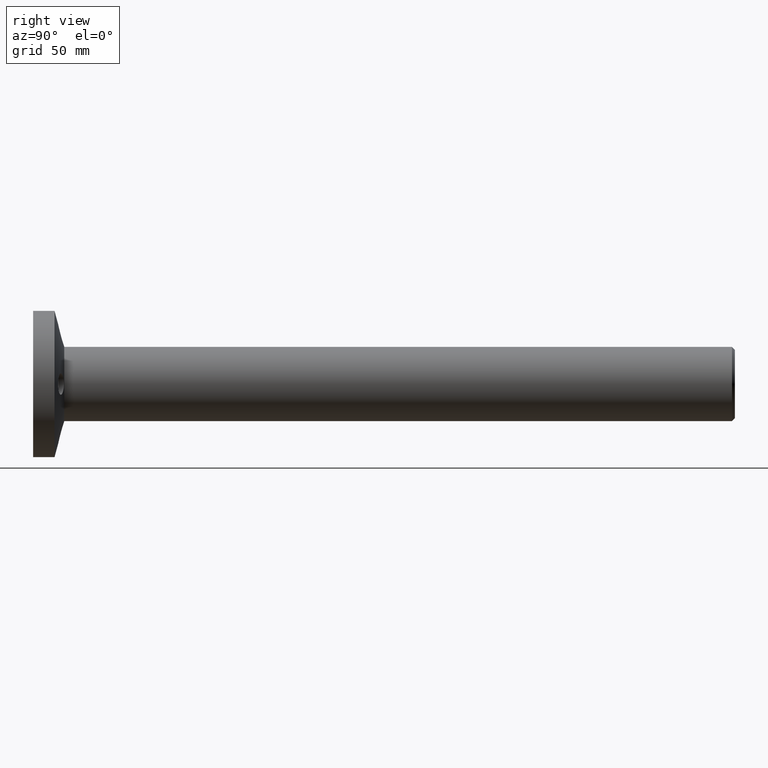
[diagram: clean part render]
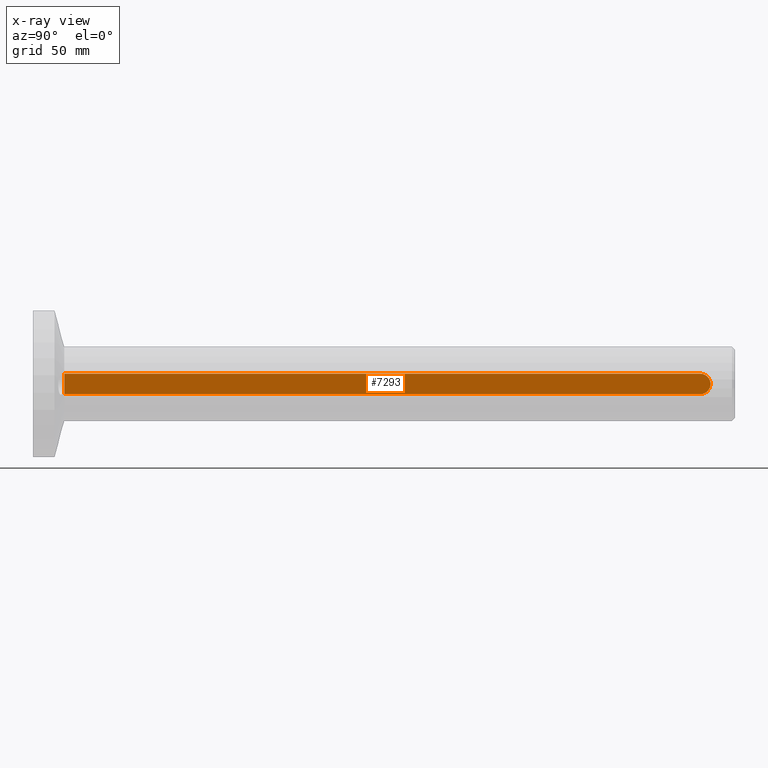
[diagram: x-ray — body ghosted, one internal face saturated and labeled with its STEP entity id]
A machine part, right view, then the same camera in x-ray: the body is ghosted and one INTERNAL B-rep face — a face not visible from any outside direction — is saturated and labeled: STEP entity #7293.
In plain terms, the highlighted planar face has unit normal (-1, 0, 0).
Its self-contained STEP definition (entity closure, byte-faithful):
#383 = CARTESIAN_POINT ( 'NONE',  ( -15.54999999999999400, 339.1799021791103400, -1.540743955509788700E-030 ) ) ;
#527 = CARTESIAN_POINT ( 'NONE',  ( -15.54999999999999400, 367.9978739896995400, 5.249999999999996400 ) ) ;
#731 = LINE ( 'NONE', #15802, #18151 ) ;
#1067 = CARTESIAN_POINT ( 'NONE',  ( -15.54999999999999400, 339.1799021791103400, 5.249999999999976900 ) ) ;
#1278 = VECTOR ( 'NONE', #9800, 1000.000000000000000 ) ;
#1450 = CARTESIAN_POINT ( 'NONE',  ( -15.54999999999999400, 367.9978739896995400, -5.249999999999996400 ) ) ;
#1669 = ORIENTED_EDGE ( 'NONE', *, *, #19361, .F. ) ;
#2512 = ORIENTED_EDGE ( 'NONE', *, *, #15481, .F. ) ;
#2666 = AXIS2_PLACEMENT_3D ( 'NONE', #4621, #10951, #6199 ) ;
#2928 = AXIS2_PLACEMENT_3D ( 'NONE', #4049, #19373, #11582 ) ;
#3076 = VERTEX_POINT ( 'NONE', #8088 ) ;
#3583 = CARTESIAN_POINT ( 'NONE',  ( -15.54999999999999400, 12.92990217911026100, 5.249999999999996400 ) ) ;
#3913 = ORIENTED_EDGE ( 'NONE', *, *, #17258, .T. ) ;
#4049 = CARTESIAN_POINT ( 'NONE',  ( -15.54999999999999400, 339.1799021791103400, -1.540743955509788700E-030 ) ) ;
#4621 = CARTESIAN_POINT ( 'NONE',  ( -15.54999999999999400, 339.1799021791103400, -1.540743955509788700E-030 ) ) ;
#5064 = DIRECTION ( 'NONE',  ( -1.000000000000000000, 0.0000000000000000000, 0.0000000000000000000 ) ) ;
#5690 = LINE ( 'NONE', #1450, #9761 ) ;
#5772 = FACE_OUTER_BOUND ( 'NONE', #10777, .T. ) ;
#5871 = EDGE_CURVE ( 'NONE', #9710, #10438, #10305, .T. ) ;
#5940 = LINE ( 'NONE', #17546, #16609 ) ;
#6199 = DIRECTION ( 'NONE',  ( 0.0000000000000000000, 0.0000000000000000000, -1.000000000000000000 ) ) ;
#6670 = AXIS2_PLACEMENT_3D ( 'NONE', #383, #17036, #18662 ) ;
#6675 = DIRECTION ( 'NONE',  ( 0.0000000000000000000, 0.0000000000000000000, 1.000000000000000000 ) ) ;
#7202 = CARTESIAN_POINT ( 'NONE',  ( -15.54999999999999400, 338.6799021791102900, 5.226136240091686400 ) ) ;
#7293 = ADVANCED_FACE ( 'NONE', ( #5772 ), #14159, .T. ) ;
#7394 = DIRECTION ( 'NONE',  ( 0.0000000000000000000, -1.000000000000000000, 0.0000000000000000000 ) ) ;
#8088 = CARTESIAN_POINT ( 'NONE',  ( -15.54999999999999400, 12.92990217911026100, -5.249999999999996400 ) ) ;
#8425 = EDGE_CURVE ( 'NONE', #11615, #9710, #13807, .T. ) ;
#9280 = LINE ( 'NONE', #18675, #13778 ) ;
#9660 = DIRECTION ( 'NONE',  ( 0.0000000000000000000, 0.0000000000000000000, 1.000000000000000000 ) ) ;
#9710 = VERTEX_POINT ( 'NONE', #10132 ) ;
#9750 = VERTEX_POINT ( 'NONE', #19181 ) ;
#9761 = VECTOR ( 'NONE', #7394, 1000.000000000000000 ) ;
#9800 = DIRECTION ( 'NONE',  ( -4.930380657631327100E-032, 0.0000000000000000000, -1.000000000000000000 ) ) ;
#9899 = LINE ( 'NONE', #3583, #1278 ) ;
#10132 = CARTESIAN_POINT ( 'NONE',  ( -15.54999999999999400, 339.1799021791103400, -5.249999999999976900 ) ) ;
#10305 = CIRCLE ( 'NONE', #2928, 5.249999999999974200 ) ;
#10438 = VERTEX_POINT ( 'NONE', #1067 ) ;
#10716 = CARTESIAN_POINT ( 'NONE',  ( -15.54999999999999400, 338.6799021791102900, -5.226136240091686400 ) ) ;
#10777 = EDGE_LOOP ( 'NONE', ( #2512, #1669, #12188, #12406, #19235, #3913, #15219, #18424 ) ) ;
#10951 = DIRECTION ( 'NONE',  ( 1.000000000000000000, 0.0000000000000000000, 0.0000000000000000000 ) ) ;
#11143 = EDGE_CURVE ( 'NONE', #18404, #3076, #9899, .T. ) ;
#11582 = DIRECTION ( 'NONE',  ( 0.0000000000000000000, 0.0000000000000000000, -1.000000000000000000 ) ) ;
#11615 = VERTEX_POINT ( 'NONE', #10716 ) ;
#11754 = CARTESIAN_POINT ( 'NONE',  ( -15.54999999999999400, 12.92990217911026100, 5.249999999999996400 ) ) ;
#12188 = ORIENTED_EDGE ( 'NONE', *, *, #5871, .F. ) ;
#12406 = ORIENTED_EDGE ( 'NONE', *, *, #8425, .F. ) ;
#12523 = DIRECTION ( 'NONE',  ( 0.0000000000000000000, -1.000000000000000000, 0.0000000000000000000 ) ) ;
#12530 = AXIS2_PLACEMENT_3D ( 'NONE', #527, #5064, #9660 ) ;
#12897 = EDGE_CURVE ( 'NONE', #9750, #11615, #5940, .T. ) ;
#13001 = CIRCLE ( 'NONE', #2666, 5.249999999999974200 ) ;
#13542 = VERTEX_POINT ( 'NONE', #7202 ) ;
#13778 = VECTOR ( 'NONE', #12523, 1000.000000000000000 ) ;
#13807 = CIRCLE ( 'NONE', #6670, 5.249999999999974200 ) ;
#14159 = PLANE ( 'NONE',  #12530 ) ;
#14532 = DIRECTION ( 'NONE',  ( 0.0000000000000000000, 0.0000000000000000000, 1.000000000000000000 ) ) ;
#14929 = CARTESIAN_POINT ( 'NONE',  ( -15.54999999999999400, 338.6799021791102900, 5.249999999999996400 ) ) ;
#15069 = VERTEX_POINT ( 'NONE', #14929 ) ;
#15219 = ORIENTED_EDGE ( 'NONE', *, *, #11143, .F. ) ;
#15481 = EDGE_CURVE ( 'NONE', #13542, #15069, #731, .T. ) ;
#15802 = CARTESIAN_POINT ( 'NONE',  ( -15.54999999999999400, 338.6799021791102900, 5.249999999999996400 ) ) ;
#16609 = VECTOR ( 'NONE', #14532, 1000.000000000000000 ) ;
#17036 = DIRECTION ( 'NONE',  ( 1.000000000000000000, 0.0000000000000000000, 0.0000000000000000000 ) ) ;
#17258 = EDGE_CURVE ( 'NONE', #9750, #3076, #5690, .T. ) ;
#17546 = CARTESIAN_POINT ( 'NONE',  ( -15.54999999999999400, 338.6799021791102900, 5.249999999999996400 ) ) ;
#18151 = VECTOR ( 'NONE', #6675, 1000.000000000000000 ) ;
#18404 = VERTEX_POINT ( 'NONE', #11754 ) ;
#18424 = ORIENTED_EDGE ( 'NONE', *, *, #18654, .F. ) ;
#18654 = EDGE_CURVE ( 'NONE', #15069, #18404, #9280, .T. ) ;
#18662 = DIRECTION ( 'NONE',  ( 0.0000000000000000000, 0.0000000000000000000, -1.000000000000000000 ) ) ;
#18675 = CARTESIAN_POINT ( 'NONE',  ( -15.54999999999999400, 367.9978739896995400, 5.249999999999996400 ) ) ;
#19181 = CARTESIAN_POINT ( 'NONE',  ( -15.54999999999999400, 338.6799021791102900, -5.249999999999996400 ) ) ;
#19235 = ORIENTED_EDGE ( 'NONE', *, *, #12897, .F. ) ;
#19361 = EDGE_CURVE ( 'NONE', #10438, #13542, #13001, .T. ) ;
#19373 = DIRECTION ( 'NONE',  ( 1.000000000000000000, 0.0000000000000000000, 0.0000000000000000000 ) ) ;